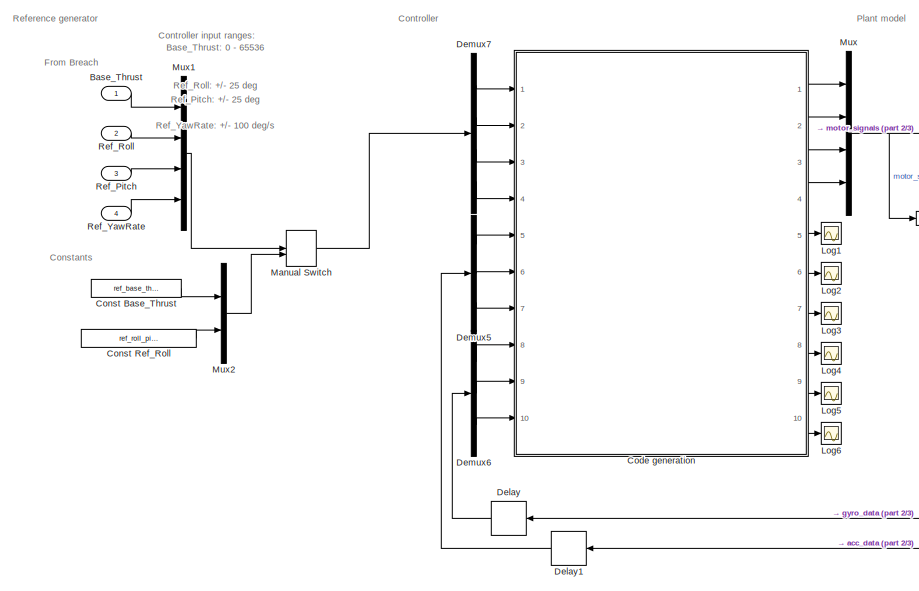
[diagram: root canvas - part 1/3, top left region]
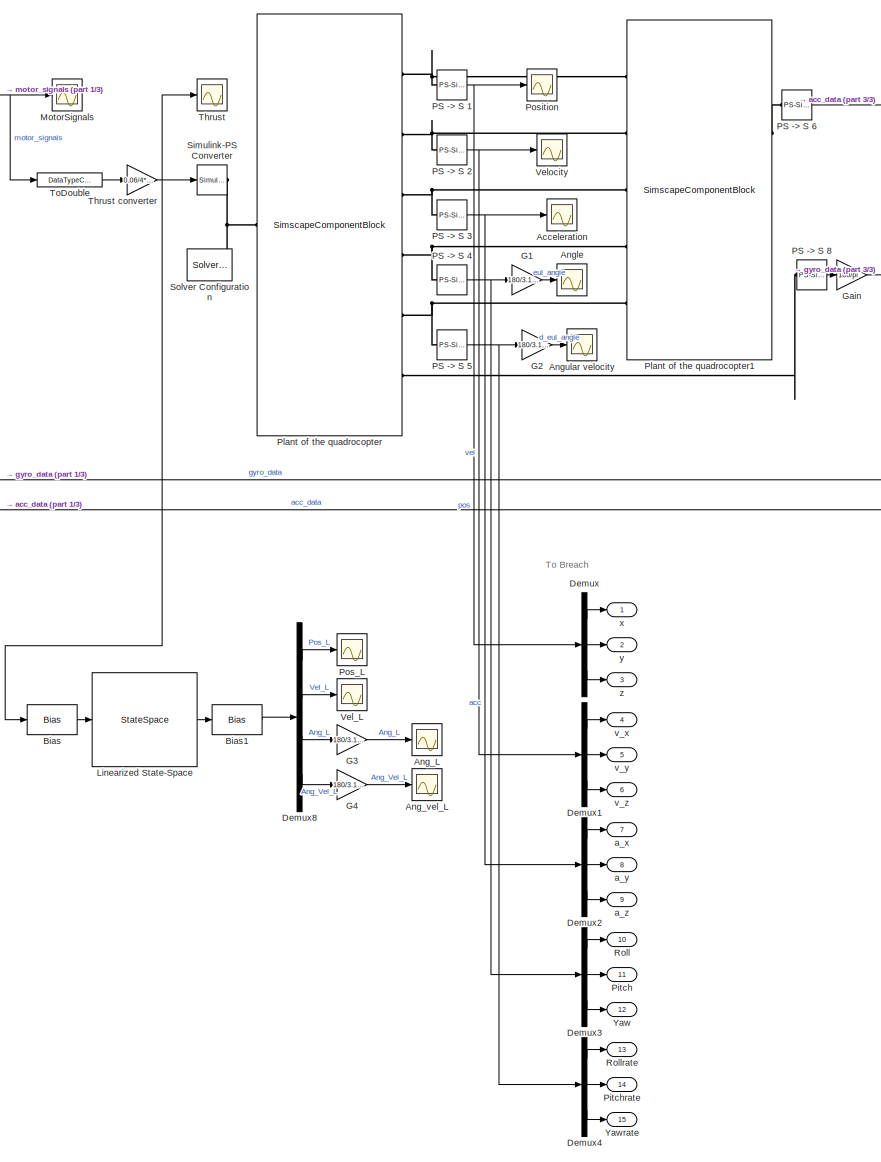
[diagram: root canvas - part 2/3, right side, full height]
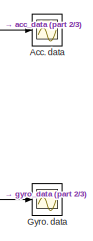
[diagram: root canvas - part 3/3, top right region]
MODEL slx_3da047617aa9
KIND model
CONFIG AbsTol = 1e-3
CONFIG EnableMultiTasking = off
CONFIG FixedStep = 1/100
CONFIG MaxStep = auto
CONFIG MinStep = auto
CONFIG RelTol = 1e-3
CONFIG SampleTimeConstraint = Unconstrained
CONFIG Solver = FixedStepAuto
CONFIG SolverName = FixedStepAuto
CONFIG StartTime = 0.0
CONFIG StopTime = 20
WORKSPACE source: external: MAT-File  (data not in archive)
BLOCK [Scope] Acc. data
  Floating = off
  NumInputPorts = 1
  Ports = [1]
  ScopeSpecificationString = Simulink.scopes.TimeScopeBlockCfg('CurrentConfiguration', extmgr.ConfigurationSet(extmgr.Configuration('Core','General UI',true),extmgr.Configuration('Core','Source UI',true),extmgr.Configuration('Sources','WiredSimulink',true,'DataLoggingVariableName','ScopeData1','DataLoggingLimitDataPoints',true,'DataLoggingSaveFormat','Array','DataLoggingDecimation','1','DataLoggingDecimateData',true),extmgr.C...<+1572ch>
BLOCK [Scope] Acceleration
  Floating = off
  NumInputPorts = 1
  Ports = [1]
  ScopeSpecificationString = Simulink.scopes.TimeScopeBlockCfg('CurrentConfiguration', extmgr.ConfigurationSet(extmgr.Configuration('Core','General UI',true),extmgr.Configuration('Core','Source UI',true),extmgr.Configuration('Sources','WiredSimulink',true,'DataLoggingVariableName','ScopeData2'),extmgr.Configuration('Visuals','Time Domain',true,'SerializedDisplays',{struct('MinYLimReal','-1.00000','MaxYLimReal','1.00000','YLab...<+1434ch>
BLOCK [Scope] Ang_L
  Floating = off
  NumInputPorts = 1
  Ports = [1]
  ScopeSpecificationString = Simulink.scopes.TimeScopeBlockCfg('CurrentConfiguration', extmgr.ConfigurationSet(extmgr.Configuration('Core','General UI',true),extmgr.Configuration('Core','Source UI',true),extmgr.Configuration('Sources','WiredSimulink',true,'DataLoggingVariableName','ScopeData1','DataLoggingLimitDataPoints',true,'DataLoggingSaveFormat','Array','DataLoggingDecimation','1','DataLoggingDecimateData',true),extmgr.C...<+1571ch>
BLOCK [Scope] Ang_vel_L
  Floating = off
  NumInputPorts = 1
  Ports = [1]
  ScopeSpecificationString = Simulink.scopes.TimeScopeBlockCfg('CurrentConfiguration', extmgr.ConfigurationSet(extmgr.Configuration('Core','General UI',true),extmgr.Configuration('Core','Source UI',true),extmgr.Configuration('Sources','WiredSimulink',true,'DataLoggingVariableName','ScopeData2','DataLoggingLimitDataPoints',true,'DataLoggingSaveFormat','Array','DataLoggingDecimation','1','DataLoggingDecimateData',true),extmgr.C...<+1527ch>
BLOCK [Scope] Angle
  Floating = off
  NumInputPorts = 1
  Ports = [1]
  ScopeSpecificationString = Simulink.scopes.TimeScopeBlockCfg('CurrentConfiguration', extmgr.ConfigurationSet(extmgr.Configuration('Core','General UI',true),extmgr.Configuration('Core','Source UI',true),extmgr.Configuration('Sources','WiredSimulink',true,'DataLoggingVariableName','ScopeData3'),extmgr.Configuration('Visuals','Time Domain',true,'SerializedDisplays',{struct('MinYLimReal','-4.0337','MaxYLimReal','22.67042','YLab...<+1561ch>
BLOCK [Scope] Angular velocity
  Floating = off
  NumInputPorts = 1
  Ports = [1]
  ScopeSpecificationString = Simulink.scopes.TimeScopeBlockCfg('CurrentConfiguration', extmgr.ConfigurationSet(extmgr.Configuration('Core','General UI',true),extmgr.Configuration('Core','Source UI',true),extmgr.Configuration('Sources','WiredSimulink',true,'DataLoggingVariableName','ScopeData4','DataLoggingLimitDataPoints',true,'DataLoggingSaveFormat','Array','DataLoggingDecimation','1','DataLoggingDecimateData',true),extmgr.C...<+1593ch>
BLOCK [Inport] Base_Thrust
  IconDisplay = Port number
  OutDataTypeStr = double
BLOCK [Bias] Bias
  Bias = -u_lin
  SaturateOnIntegerOverflow = off
BLOCK [Bias] Bias1
  Bias = +x_lin
  SaturateOnIntegerOverflow = off
BLOCK [ModelReference] Code generation
  ModelNameDialog = crazyflie.slx
  ModelReferenceVersion = 1.283
  Ports = [10, 10]
BLOCK [Constant] Const Base_Thrust
  Value = ref_base_thrust
BLOCK [Constant] Const Ref_Roll
  Value = ref_roll_pitch_yawrate
BLOCK [Delay] Delay
  DelayLength = 1
  InputPortMap = u0
  Ports = [1, 1]
BLOCK [Delay] Delay1
  DelayLength = 1
  InputPortMap = u0
  Ports = [1, 1]
BLOCK [Demux] Demux
  DisplayOption = bar
  Outputs = 3
  Ports = [1, 3]
BLOCK [Demux] Demux1
  DisplayOption = bar
  Outputs = 3
  Ports = [1, 3]
BLOCK [Demux] Demux2
  DisplayOption = bar
  Outputs = 3
  Ports = [1, 3]
BLOCK [Demux] Demux3
  DisplayOption = bar
  Outputs = 3
  Ports = [1, 3]
BLOCK [Demux] Demux4
  DisplayOption = bar
  Outputs = 3
  Ports = [1, 3]
BLOCK [Demux] Demux5
  DisplayOption = bar
  Outputs = 3
  Ports = [1, 3]
BLOCK [Demux] Demux6
  DisplayOption = bar
  Outputs = 3
  Ports = [1, 3]
BLOCK [Demux] Demux7
  DisplayOption = bar
  Ports = [1, 4]
BLOCK [Demux] Demux8
  DisplayOption = bar
  Ports = [1, 4]
BLOCK [Gain] G1
  Gain = 180/3.141592
  OutDataTypeStr = Inherit: Inherit via internal rule
  ParamDataTypeStr = Inherit: Inherit via internal rule
  SaturateOnIntegerOverflow = off
BLOCK [Gain] G2
  Gain = 180/3.141592
  OutDataTypeStr = Inherit: Inherit via internal rule
  ParamDataTypeStr = Inherit: Inherit via internal rule
  SaturateOnIntegerOverflow = off
BLOCK [Gain] G3
  Gain = 180/3.141592
  OutDataTypeStr = Inherit: Inherit via internal rule
  ParamDataTypeStr = Inherit: Inherit via internal rule
  SaturateOnIntegerOverflow = off
BLOCK [Gain] G4
  Gain = 180/3.141592
  OutDataTypeStr = Inherit: Inherit via internal rule
  ParamDataTypeStr = Inherit: Inherit via internal rule
  SaturateOnIntegerOverflow = off
BLOCK [Gain] Gain
  Gain = 180/pi
  OutDataTypeStr = Inherit: Inherit via internal rule
  ParamDataTypeStr = Inherit: Inherit via internal rule
  SaturateOnIntegerOverflow = off
BLOCK [Scope] Gyro. data
  Floating = off
  NumInputPorts = 1
  Ports = [1]
  ScopeSpecificationString = Simulink.scopes.TimeScopeBlockCfg('CurrentConfiguration', extmgr.ConfigurationSet(extmgr.Configuration('Core','General UI',true),extmgr.Configuration('Core','Source UI',true),extmgr.Configuration('Sources','WiredSimulink',true,'DataLoggingVariableName','ScopeData2','DataLoggingLimitDataPoints',true,'DataLoggingSaveFormat','Array','DataLoggingDecimation','1','DataLoggingDecimateData',true),extmgr.C...<+1590ch>
BLOCK [StateSpace] Linearized State-Space
  A = An
  B = Bn
  C = Cn
  D = Dn
  InitialCondition = x0
  Ports = [1, 1]
BLOCK [Scope] Log1
  Floating = off
  NumInputPorts = 1
  Ports = [1]
  ScopeSpecificationString = Simulink.scopes.TimeScopeBlockCfg('CurrentConfiguration', extmgr.ConfigurationSet(extmgr.Configuration('Core','General UI',true),extmgr.Configuration('Core','Source UI',true),extmgr.Configuration('Sources','WiredSimulink',true,'DataLoggingVariableName','ScopeData1','DataLoggingLimitDataPoints',true,'DataLoggingSaveFormat','Array','DataLoggingDecimation','1','DataLoggingDecimateData',true),extmgr.C...<+1520ch>
BLOCK [Scope] Log2
  Floating = off
  NumInputPorts = 1
  Ports = [1]
  ScopeSpecificationString = C++SS(StrPVP('SaveName','ScopeData'),StrPVP('SaveName','ScopeData1'),StrPVP('SaveName','ScopeData4'),StrPVP('LimitDataPoints','on'),StrPVP('DataFormat','Array'),StrPVP('Decimation','1'),StrPVP('BlockParamSampleInput','off'),StrPVP('SaveName','ScopeData1'),StrPVP('SaveName','ScopeData2'))
BLOCK [Scope] Log3
  Floating = off
  NumInputPorts = 1
  Ports = [1]
  ScopeSpecificationString = Simulink.scopes.TimeScopeBlockCfg('CurrentConfiguration', extmgr.ConfigurationSet(extmgr.Configuration('Core','General UI',true),extmgr.Configuration('Core','Source UI',true),extmgr.Configuration('Sources','WiredSimulink',true,'DataLoggingVariableName','ScopeData3','DataLoggingLimitDataPoints',true,'DataLoggingSaveFormat','Array','DataLoggingDecimation','1','DataLoggingDecimateData',true),extmgr.C...<+1498ch>
BLOCK [Scope] Log4
  Floating = off
  NumInputPorts = 1
  Ports = [1]
  ScopeSpecificationString = Simulink.scopes.TimeScopeBlockCfg('CurrentConfiguration', extmgr.ConfigurationSet(extmgr.Configuration('Core','General UI',true),extmgr.Configuration('Core','Source UI',true),extmgr.Configuration('Sources','WiredSimulink',true,'DataLoggingVariableName','ScopeData4','DataLoggingLimitDataPoints',true,'DataLoggingSaveFormat','Array','DataLoggingDecimation','1','DataLoggingDecimateData',true),extmgr.C...<+1528ch>
BLOCK [Scope] Log5
  Floating = off
  NumInputPorts = 1
  Ports = [1]
  ScopeSpecificationString = Simulink.scopes.TimeScopeBlockCfg('CurrentConfiguration', extmgr.ConfigurationSet(extmgr.Configuration('Core','General UI',true),extmgr.Configuration('Core','Source UI',true),extmgr.Configuration('Sources','WiredSimulink',true,'DataLoggingVariableName','ScopeData5','DataLoggingLimitDataPoints',true,'DataLoggingSaveFormat','Array','DataLoggingDecimation','1','DataLoggingDecimateData',true),extmgr.C...<+1530ch>
BLOCK [Scope] Log6
  Floating = off
  NumInputPorts = 1
  Ports = [1]
  ScopeSpecificationString = C++SS(StrPVP('SaveName','ScopeData'),StrPVP('SaveName','ScopeData1'),StrPVP('SaveName','ScopeData4'),StrPVP('LimitDataPoints','on'),StrPVP('DataFormat','Array'),StrPVP('Decimation','1'),StrPVP('BlockParamSampleInput','off'),StrPVP('SaveName','ScopeData1'),StrPVP('SaveName','ScopeData6'))
BLOCK [ManualSwitch] Manual Switch
  CurrentSetting = 0
BLOCK [Scope] MotorSignals
  Floating = off
  NumInputPorts = 1
  Ports = [1]
  ScopeSpecificationString = Simulink.scopes.TimeScopeBlockCfg('CurrentConfiguration', extmgr.ConfigurationSet(extmgr.Configuration('Core','General UI',true),extmgr.Configuration('Core','Source UI',true),extmgr.Configuration('Sources','WiredSimulink',true,'DataLoggingVariableName','ScopeData2'),extmgr.Configuration('Visuals','Time Domain',true,'SerializedDisplays',{struct('MinYLimReal','6675.00000','MaxYLimReal','12735.00000'...<+1616ch>
BLOCK [Mux] Mux
  DisplayOption = bar
  Ports = [4, 1]
BLOCK [Mux] Mux1
  DisplayOption = bar
  Ports = [4, 1]
BLOCK [Mux] Mux2
  DisplayOption = bar
  Inputs = 2
  Ports = [2, 1]
BLOCK [Reference] PS -> S 1  REF=nesl_utility/PS-Simulink
Converter
  Ports = [0, 1, 0, 0, 0, 1]
  SourceBlock = nesl_utility/PS-Simulink\nConverter
  SourceProductBaseCode = SS
  SourceProductName = Simscape
  SourceType = PS-Simulink\nConverter
BLOCK [Reference] PS -> S 2  REF=nesl_utility/PS-Simulink
Converter
  Ports = [0, 1, 0, 0, 0, 1]
  SourceBlock = nesl_utility/PS-Simulink\nConverter
  SourceProductBaseCode = SS
  SourceProductName = Simscape
  SourceType = PS-Simulink\nConverter
BLOCK [Reference] PS -> S 3  REF=nesl_utility/PS-Simulink
Converter
  Ports = [0, 1, 0, 0, 0, 1]
  SourceBlock = nesl_utility/PS-Simulink\nConverter
  SourceProductBaseCode = SS
  SourceProductName = Simscape
  SourceType = PS-Simulink\nConverter
BLOCK [Reference] PS -> S 4  REF=nesl_utility/PS-Simulink
Converter
  Ports = [0, 1, 0, 0, 0, 1]
  SourceBlock = nesl_utility/PS-Simulink\nConverter
  SourceProductBaseCode = SS
  SourceProductName = Simscape
  SourceType = PS-Simulink\nConverter
BLOCK [Reference] PS -> S 5  REF=nesl_utility/PS-Simulink
Converter
  Ports = [0, 1, 0, 0, 0, 1]
  SourceBlock = nesl_utility/PS-Simulink\nConverter
  SourceProductBaseCode = SS
  SourceProductName = Simscape
  SourceType = PS-Simulink\nConverter
BLOCK [Reference] PS -> S 6  REF=nesl_utility/PS-Simulink
Converter
  Ports = [0, 1, 0, 0, 0, 1]
  SourceBlock = nesl_utility/PS-Simulink\nConverter
  SourceProductBaseCode = SS
  SourceProductName = Simscape
  SourceType = PS-Simulink\nConverter
BLOCK [Reference] PS -> S 8  REF=nesl_utility/PS-Simulink
Converter
  Ports = [0, 1, 0, 0, 0, 1]
  SourceBlock = nesl_utility/PS-Simulink\nConverter
  SourceProductBaseCode = SS
  SourceProductName = Simscape
  SourceType = PS-Simulink\nConverter
BLOCK [Outport] Pitch
  IconDisplay = Port number
  Port = 11
BLOCK [Outport] Pitchrate
  IconDisplay = Port number
  Port = 14
BLOCK [SimscapeComponentBlock] Plant of the quadrocopter
  ClassName = plant
  ComponentPath = plant
  ComponentVariantNames = plant
  ComponentVariants = plant
  CopyFcn = simscape.engine.sli.internal.componentblockcallback(gcbh,'COPY')
  MaskType = Plant of quadrocopter
  Ports = [0, 0, 0, 0, 0, 1, 6]
  PreCopyFcn = simscape.engine.sli.internal.componentblockcallback(gcbh,'PRECOPY')
  PreDeleteFcn = simscape.engine.sli.internal.componentblockcallback(gcbh,'PREDELETE')
  SchemaVersion = 1
  SourceFile = plant
  b = b
  b_conf = compiletime
  b_unit = N*m/(rad/s)^2
  d = d
  d_conf = compiletime
  d_unit = m
  g = g
  g_conf = compiletime
  g_unit = m/s^2
  k = k
  k_conf = compiletime
  k_unit = s^2*N/rad^2
  m = m
  m_conf = compiletime
  m_unit = kg
  x0 = x0
  x0_conf = compiletime
  x0_unit = 1
BLOCK [SimscapeComponentBlock] Plant of the quadrocopter1
  ClassName = sensors
  ComponentPath = sensors
  ComponentVariantNames = sensors
  ComponentVariants = sensors
  CopyFcn = simscape.engine.sli.internal.componentblockcallback(gcbh,'COPY')
  MaskType = Plant of quadrocopter
  Ports = [0, 0, 0, 0, 0, 5, 2]
  PreCopyFcn = simscape.engine.sli.internal.componentblockcallback(gcbh,'PRECOPY')
  PreDeleteFcn = simscape.engine.sli.internal.componentblockcallback(gcbh,'PREDELETE')
  SchemaVersion = 1
  SourceFile = sensors
BLOCK [Scope] Pos_L
  Floating = off
  NumInputPorts = 1
  Ports = [1]
  ScopeSpecificationString = Simulink.scopes.TimeScopeBlockCfg('CurrentConfiguration', extmgr.ConfigurationSet(extmgr.Configuration('Core','General UI',true),extmgr.Configuration('Core','Source UI',true),extmgr.Configuration('Sources','WiredSimulink',true,'DataLoggingVariableName','ScopeData3'),extmgr.Configuration('Visuals','Time Domain',true,'SerializedDisplays',{struct('MinYLimReal','-558.16446','MaxYLimReal','123.68421','...<+1427ch>
BLOCK [Scope] Position
  Floating = off
  NumInputPorts = 1
  Ports = [1]
  ScopeSpecificationString = Simulink.scopes.TimeScopeBlockCfg('CurrentConfiguration', extmgr.ConfigurationSet(extmgr.Configuration('Core','General UI',true),extmgr.Configuration('Core','Source UI',true),extmgr.Configuration('Sources','WiredSimulink',true),extmgr.Configuration('Visuals','Time Domain',true,'SerializedDisplays',{struct('MinYLimReal','-1.00000','MaxYLimReal','1.00000','YLabelReal','','MinYLimMag','0.00000','MaxY...<+1413ch>
BLOCK [Inport] Ref_Pitch
  IconDisplay = Port number
  OutDataTypeStr = double
  Port = 3
BLOCK [Inport] Ref_Roll
  IconDisplay = Port number
  OutDataTypeStr = double
  Port = 2
BLOCK [Inport] Ref_YawRate
  IconDisplay = Port number
  OutDataTypeStr = double
  Port = 4
BLOCK [Outport] Roll
  IconDisplay = Port number
  Port = 10
BLOCK [Outport] Rollrate
  IconDisplay = Port number
  Port = 13
BLOCK [Reference] Simulink-PS Converter  REF=nesl_utility/Simulink-PS
Converter
  Ports = [1, 0, 0, 0, 0, 0, 1]
  SourceBlock = nesl_utility/Simulink-PS\nConverter
  SourceProductBaseCode = SS
  SourceProductName = Simscape
  SourceType = Simulink-PS\nConverter
BLOCK [Reference] Solver Configuration  REF=nesl_utility/Solver
Configuration
  Ports = [0, 0, 0, 0, 0, 0, 1]
  SourceBlock = nesl_utility/Solver\nConfiguration
  SourceProductBaseCode = SS
  SourceProductName = Simscape
  SourceType = Solver\nConfiguration
BLOCK [Scope] Thrust
  Floating = off
  NumInputPorts = 1
  Ports = [1]
  ScopeSpecificationString = Simulink.scopes.TimeScopeBlockCfg('CurrentConfiguration', extmgr.ConfigurationSet(extmgr.Configuration('Core','General UI',true),extmgr.Configuration('Core','Source UI',true),extmgr.Configuration('Sources','WiredSimulink',true,'DataLoggingVariableName','ScopeData1'),extmgr.Configuration('Visuals','Time Domain',true,'SerializedDisplays',{struct('MinYLimReal','-0.00004','MaxYLimReal','0.00036','YLab...<+1492ch>
BLOCK [Gain] Thrust converter
  Gain = 0.06/4*g/65536
  OutDataTypeStr = Inherit: Inherit via internal rule
  ParamDataTypeStr = Inherit: Inherit via internal rule
  SaturateOnIntegerOverflow = off
BLOCK [DataTypeConversion] ToDouble
  OutDataTypeStr = double
  RndMeth = Round
BLOCK [Scope] Vel_L
  Floating = off
  NumInputPorts = 1
  Ports = [1]
  ScopeSpecificationString = Simulink.scopes.TimeScopeBlockCfg('CurrentConfiguration', extmgr.ConfigurationSet(extmgr.Configuration('Core','General UI',true),extmgr.Configuration('Core','Source UI',true),extmgr.Configuration('Sources','WiredSimulink',true,'DataLoggingVariableName','ScopeData4','DataLoggingLimitDataPoints',true,'DataLoggingSaveFormat','Array','DataLoggingDecimation','1','DataLoggingDecimateData',true),extmgr.C...<+1511ch>
BLOCK [Scope] Velocity
  Floating = off
  NumInputPorts = 1
  Ports = [1]
  ScopeSpecificationString = Simulink.scopes.TimeScopeBlockCfg('CurrentConfiguration', extmgr.ConfigurationSet(extmgr.Configuration('Core','General UI',true),extmgr.Configuration('Core','Source UI',true),extmgr.Configuration('Sources','WiredSimulink',true,'DataLoggingVariableName','ScopeData1','DataLoggingLimitDataPoints',true,'DataLoggingSaveFormat','Array','DataLoggingDecimation','1','DataLoggingDecimateData',true),extmgr.C...<+1559ch>
BLOCK [Outport] Yaw
  IconDisplay = Port number
  Port = 12
BLOCK [Outport] Yawrate
  IconDisplay = Port number
  Port = 15
BLOCK [Outport] a_x
  IconDisplay = Port number
  Port = 7
BLOCK [Outport] a_y
  IconDisplay = Port number
  Port = 8
BLOCK [Outport] a_z
  IconDisplay = Port number
  Port = 9
BLOCK [Outport] v_x
  IconDisplay = Port number
  Port = 4
BLOCK [Outport] v_y
  IconDisplay = Port number
  Port = 5
BLOCK [Outport] v_z
  IconDisplay = Port number
  Port = 6
BLOCK [Outport] x
  IconDisplay = Port number
BLOCK [Outport] y
  IconDisplay = Port number
  Port = 2
BLOCK [Outport] z
  IconDisplay = Port number
  Port = 3
ANNOTATION (root): Base_Thrust: 0 - 65536
ANNOTATION (root): Constants
ANNOTATION (root): Controller
ANNOTATION (root): Controller input ranges:
ANNOTATION (root): From Breach
ANNOTATION (root): Plant model
ANNOTATION (root): Ref_Pitch: +/- 25 deg
ANNOTATION (root): Ref_Roll: +/- 25 deg
ANNOTATION (root): Ref_YawRate: +/- 100 deg/s
ANNOTATION (root): Reference generator
ANNOTATION (root): To Breach
LINE Base_Thrust:1 -> Mux1:1
LINE Bias1:1 -> Demux8:1
LINE Bias:1 -> Linearized State-Space:1
LINE Code generation:1 -> Mux:1
LINE Code generation:10 -> Log6:1
LINE Code generation:2 -> Mux:2
LINE Code generation:3 -> Mux:3
LINE Code generation:4 -> Mux:4
LINE Code generation:5 -> Log1:1
LINE Code generation:6 -> Log2:1
LINE Code generation:7 -> Log3:1
LINE Code generation:8 -> Log4:1
LINE Code generation:9 -> Log5:1
LINE Const Base_Thrust:1 -> Mux2:1
LINE Const Ref_Roll:1 -> Mux2:2
LINE Delay1:1 -> Demux5:1
LINE Delay:1 -> Demux6:1
LINE Demux1:1 -> v_x:1
LINE Demux1:2 -> v_y:1
LINE Demux1:3 -> v_z:1
LINE Demux2:1 -> a_x:1
LINE Demux2:2 -> a_y:1
LINE Demux2:3 -> a_z:1
LINE Demux3:1 -> Roll:1
LINE Demux3:2 -> Pitch:1
LINE Demux3:3 -> Yaw:1
LINE Demux4:1 -> Rollrate:1
LINE Demux4:2 -> Pitchrate:1
LINE Demux4:3 -> Yawrate:1
LINE Demux5:1 -> Code generation:5
LINE Demux5:2 -> Code generation:6
LINE Demux5:3 -> Code generation:7
LINE Demux6:1 -> Code generation:8
LINE Demux6:2 -> Code generation:9
LINE Demux6:3 -> Code generation:10
LINE Demux7:1 -> Code generation:1
LINE Demux7:2 -> Code generation:2
LINE Demux7:3 -> Code generation:3
LINE Demux7:4 -> Code generation:4
LINE Demux8:1 -> Pos_L:1
LINE Demux8:2 -> Vel_L:1
LINE Demux8:3 -> G3:1
LINE Demux8:4 -> G4:1
LINE Demux:1 -> x:1
LINE Demux:2 -> y:1
LINE Demux:3 -> z:1
LINE G1:1 -> Angle:1
LINE G2:1 -> Angular velocity:1
LINE G3:1 -> Ang_L:1
LINE G4:1 -> Ang_vel_L:1
NET Gain:1 -> Delay:1, Gyro. data:1
LINE Linearized State-Space:1 -> Bias1:1
LINE Manual Switch:1 -> Demux7:1
LINE Mux1:1 -> Manual Switch:1
LINE Mux2:1 -> Manual Switch:2
NET Mux:1 -> MotorSignals:1, ToDouble:1
NET PS -> S 1:1 -> Demux:1, Position:1
NET PS -> S 2:1 -> Demux1:1, Velocity:1
NET PS -> S 3:1 -> Acceleration:1, Demux2:1
NET PS -> S 4:1 -> Demux3:1, G1:1
NET PS -> S 5:1 -> Demux4:1, G2:1
NET PS -> S 6:1 -> Acc. data:1, Delay1:1
LINE PS -> S 8:1 -> Gain:1
LINE Ref_Pitch:1 -> Mux1:3
LINE Ref_Roll:1 -> Mux1:2
LINE Ref_YawRate:1 -> Mux1:4
NET Thrust converter:1 -> Bias:1, Simulink-PS Converter:1, Thrust:1
LINE ToDouble:1 -> Thrust converter:1
PNET net1: PS -> S 1:LConn1 -- Plant of the quadrocopter1:LConn1 -- Plant of the quadrocopter:RConn1
PNET net2: PS -> S 2:LConn1 -- Plant of the quadrocopter1:LConn2 -- Plant of the quadrocopter:RConn2
PNET net3: PS -> S 3:LConn1 -- Plant of the quadrocopter1:LConn3 -- Plant of the quadrocopter:RConn3
PNET net4: PS -> S 4:LConn1 -- Plant of the quadrocopter1:LConn4 -- Plant of the quadrocopter:RConn4
PNET net5: PS -> S 5:LConn1 -- Plant of the quadrocopter1:LConn5 -- Plant of the quadrocopter:RConn5
PLINE PS -> S 6:LConn1 -- Plant of the quadrocopter1:RConn1
PLINE PS -> S 8:LConn1 -- Plant of the quadrocopter:RConn6
PNET net6: Plant of the quadrocopter:LConn1 -- Simulink-PS Converter:RConn1 -- Solver Configuration:RConn1
note: NET lines group one-source signal fan-out (src -> all destinations, sorted); 1:1 wires keep LINE; PNET lines group multi-terminal physical nets as a canonical sorted terminal list (undirected conserving connections); 2-terminal nets keep the pairwise PLINE form
